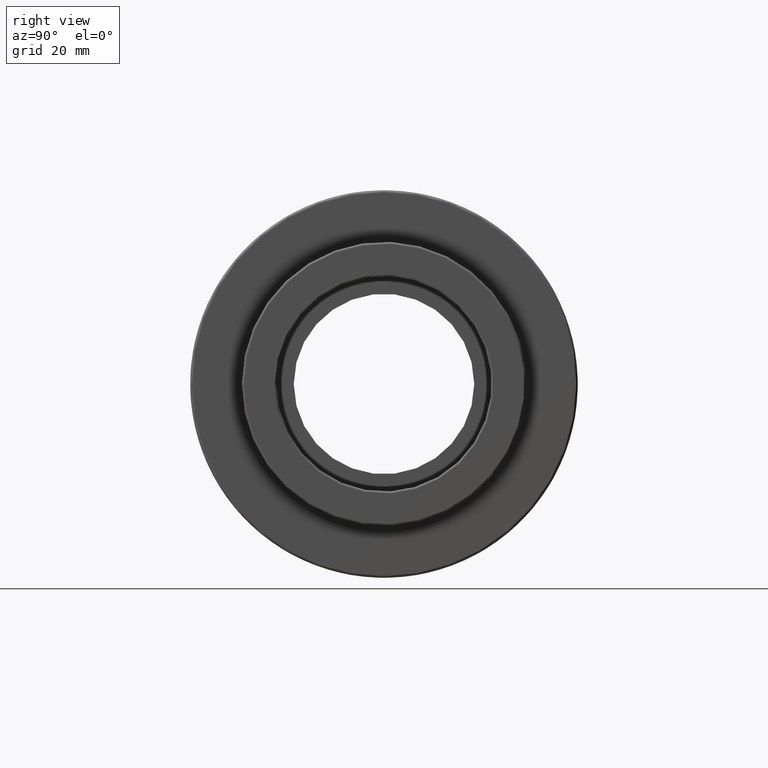
[diagram: clean part render]
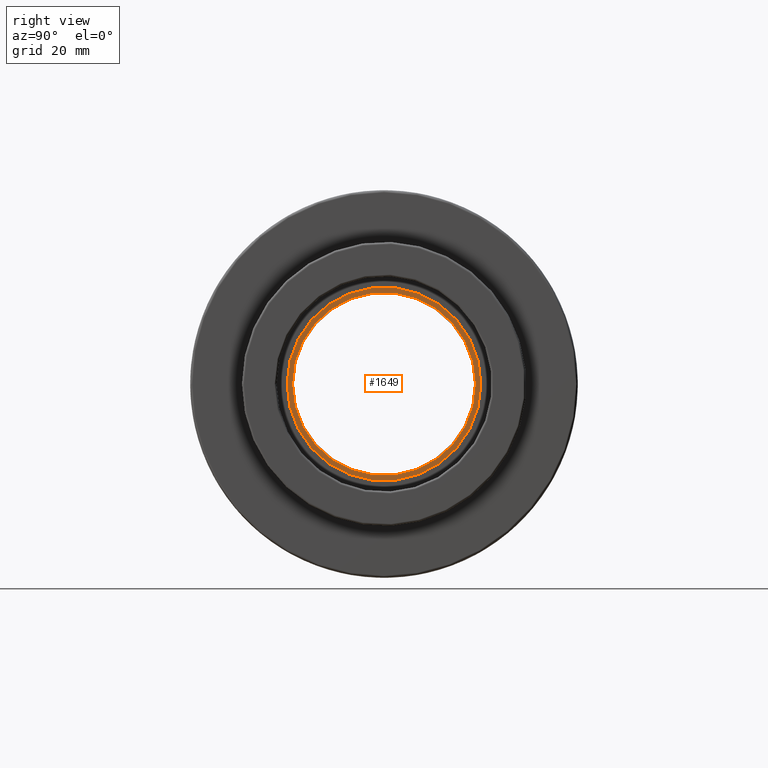
[diagram: same view with one face highlighted and labeled with its STEP entity id]
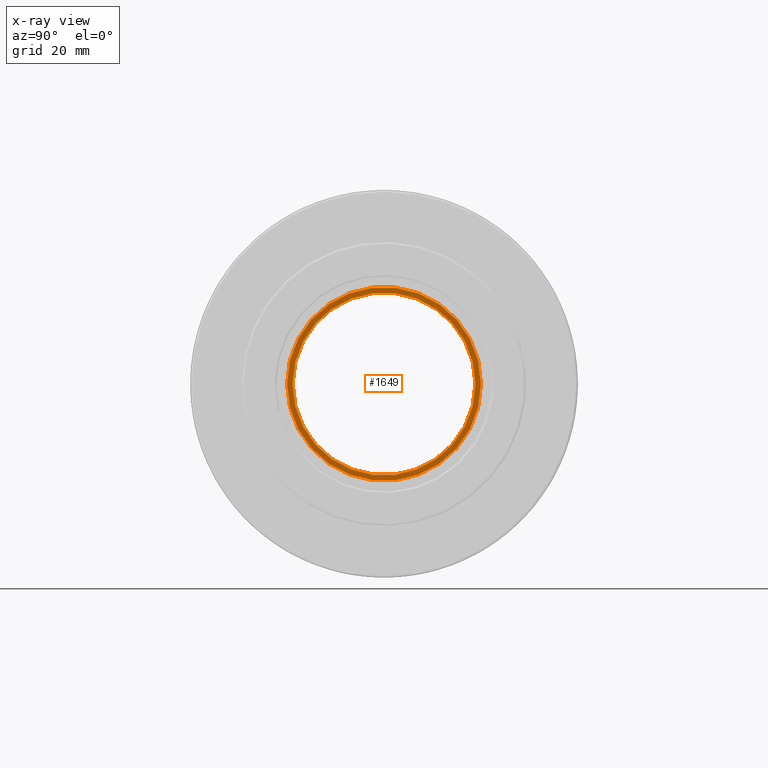
[diagram: x-ray of the same camera — body ghosted, the highlighted face saturated]
A machine part, right view. The second image highlights one B-rep face of the part: STEP entity #1649.
The next image is the same camera in x-ray: the body ghosted, the highlighted face saturated — about 0% of this face is hidden behind the body in this view.
In plain terms, the highlighted planar face has unit normal (1, 0, 0).
Its self-contained STEP definition (entity closure, byte-faithful):
#55=FACE_BOUND('',#350,.T.);
#148=CIRCLE('',#1824,17.);
#149=CIRCLE('',#1826,18.);
#239=FACE_OUTER_BOUND('',#349,.T.);
#349=EDGE_LOOP('',(#1486));
#350=EDGE_LOOP('',(#1487));
#806=VERTEX_POINT('',#2804);
#807=VERTEX_POINT('',#2807);
#1036=EDGE_CURVE('',#806,#806,#148,.T.);
#1037=EDGE_CURVE('',#807,#807,#149,.T.);
#1486=ORIENTED_EDGE('',*,*,#1037,.F.);
#1487=ORIENTED_EDGE('',*,*,#1036,.T.);
#1558=PLANE('',#1825);
#1649=ADVANCED_FACE('',(#239,#55),#1558,.T.);
#1824=AXIS2_PLACEMENT_3D('',#2805,#2317,#2318);
#1825=AXIS2_PLACEMENT_3D('',#2806,#2319,#2320);
#1826=AXIS2_PLACEMENT_3D('',#2808,#2321,#2322);
#2317=DIRECTION('center_axis',(-1.,-4.89858719658941E-16,0.));
#2318=DIRECTION('ref_axis',(0.,0.,1.));
#2319=DIRECTION('center_axis',(1.,4.89858719658941E-16,0.));
#2320=DIRECTION('ref_axis',(0.,0.,-1.));
#2321=DIRECTION('center_axis',(-1.,-4.89858719658941E-16,0.));
#2322=DIRECTION('ref_axis',(0.,0.,1.));
#2804=CARTESIAN_POINT('',(15.,-17.,0.));
#2805=CARTESIAN_POINT('Origin',(15.,1.56142466891288E-14,0.));
#2806=CARTESIAN_POINT('Origin',(15.,-18.,0.));
#2807=CARTESIAN_POINT('',(15.,-18.,0.));
#2808=CARTESIAN_POINT('Origin',(15.,1.56142466891288E-14,0.));